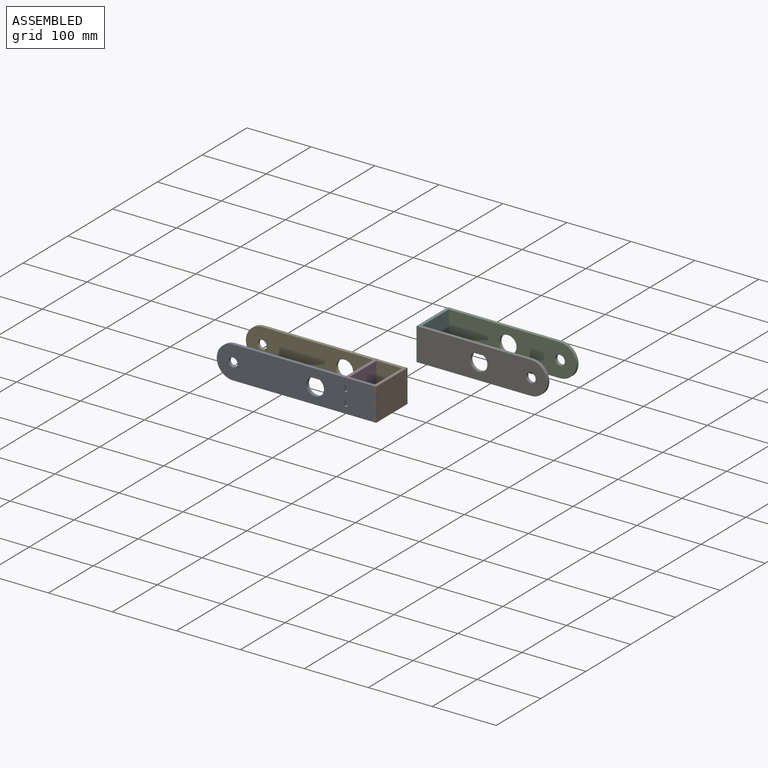
[diagram: assembled view]
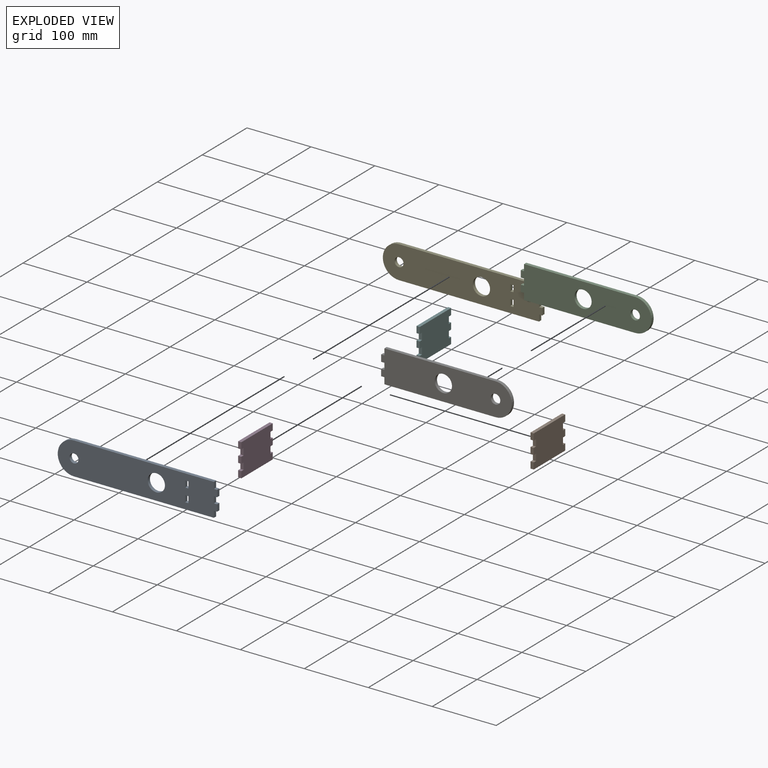
[diagram: exploded view]
GUIDED TOUR — MATED ASSEMBLY (Onshape document 6c9afa6b037c5e3ceae4af57, AutoMate assembly 6c9afa6b037c5e3ceae4af57_e607dff3a3841df9cf91f643_6e74c5bbe76d56f467ab0119_default)

This assembly has 7 components, labeled P0..P6 below (a component is one placed occurrence of a part; the same part can appear more than once), held together by 11 mates. A mate is a constraint between two components; its type names the relative motion it leaves free:
  FASTENED — locks the two components together rigidly (no relative motion),
  PLANAR — leaves sliding in the plane through the listed point (normal = the listed direction) and rotation about that normal free.
Axis/direction vectors are unit vectors and 'through' points are millimeter coordinates, both in the assembly's world frame.

MATES
  1. FASTENED "Fastened 2": P4 <-> P1, direction (0.000, 1.000, 0.000) through (-42.67, -80.15, -51.78) mm
  2. FASTENED "Fastened 3": P2 <-> P5, direction (0.000, 1.000, 0.000) through (-40.12, 6.35, 22.15) mm
  3. PLANAR "Planar 2": P5 <-> P6, direction (1.000, 0.000, 0.000) through (-35.04, -63.81, 32.25) mm
  4. PLANAR "Planar 5": P4 <-> P1, direction (0.000, 1.000, 0.000) through (-47.75, -80.15, -21.38) mm
  5. FASTENED "Fastened 5": P3 <-> P0, direction (0.000, -1.000, 0.000) through (-87.59, -150.31, -62.18) mm
  6. PLANAR "Planar 3": P2 <-> P5, direction (-1.000, 0.000, 0.000) through (-40.12, 1.27, -8.65) mm
  7. FASTENED "Fastened 1": P0 <-> P1, direction (0.000, -1.000, 0.000) through (-42.67, -150.31, -31.38) mm
  8. PLANAR "Planar 1": P2 <-> P5, direction (-1.000, 0.000, 0.000) through (-35.04, 6.35, 32.15) mm
  9. PLANAR "Planar 4": P0 <-> P1, direction (0.000, -1.000, 0.000) through (-47.75, -150.31, -21.38) mm
  10. FASTENED "Fastened 4": P6 <-> P5, direction (0.000, -1.000, 0.000) through (-40.12, -63.81, 22.15) mm
  11. PLANAR "Planar 6": P0 <-> P1, direction (0.000, -1.000, 0.000) through (-42.67, -150.31, -51.78) mm

ASSEMBLY ORDER
  1. P5 — the base component [order verified]
  2. P6 [order verified]
  3. P1 [order verified]
  4. P3 [order verified]
  5. P4 [order verified]
  6. P2 [order verified]
  7. P0 [order verified]
Order-tag legend:
  [order verified] — this step's position reverses a verified removal order: the component was checked to insert without passing through the ones already placed.

Of the 7 components, 7 carry the full construction recipe — the FeatureScript program that regenerates the part's solid from scratch; the rest are supplied as boundary geometry only.
Each toured component is shown spotlighted twice — in the assembled view, then in the exploded view, where a leader line traces a displaced component back to its assembled socket (saturated green if recipe-attached, orange if geometry-only; every other component desaturated gray) — followed by its recipe or geometry summary and the mates that hold it.
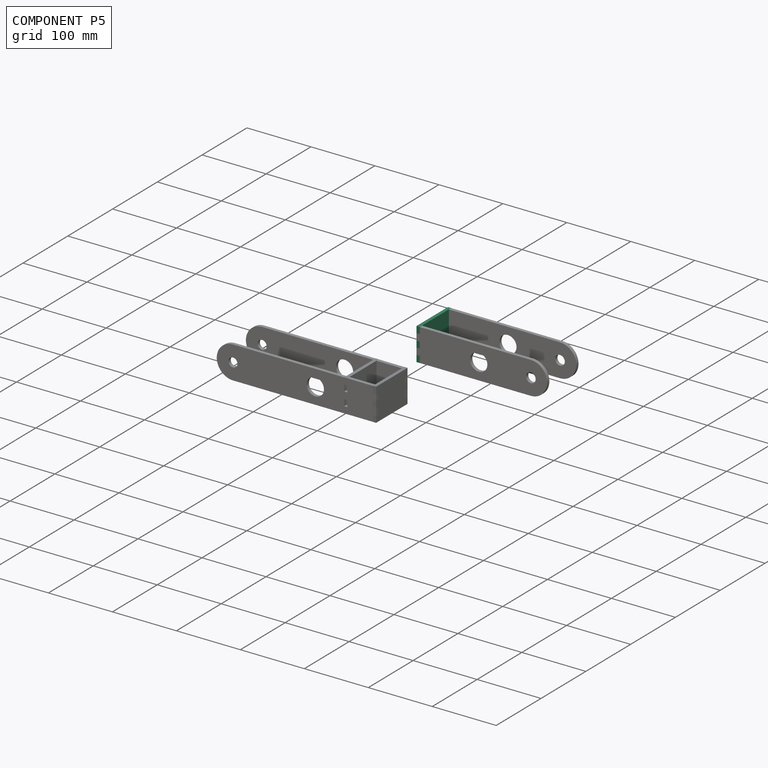
[diagram: component P5 — assembled]
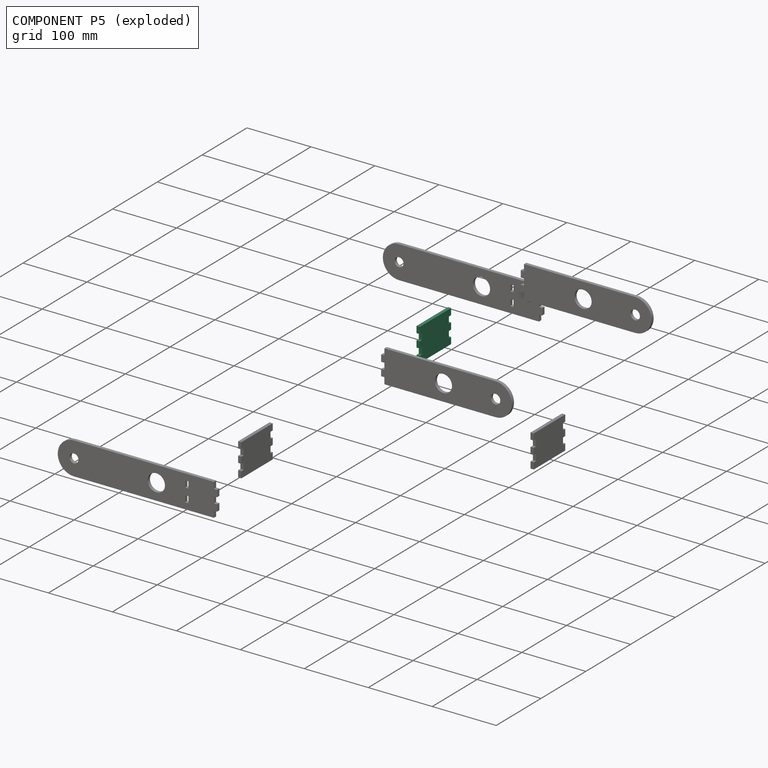
[diagram: component P5 — exploded]
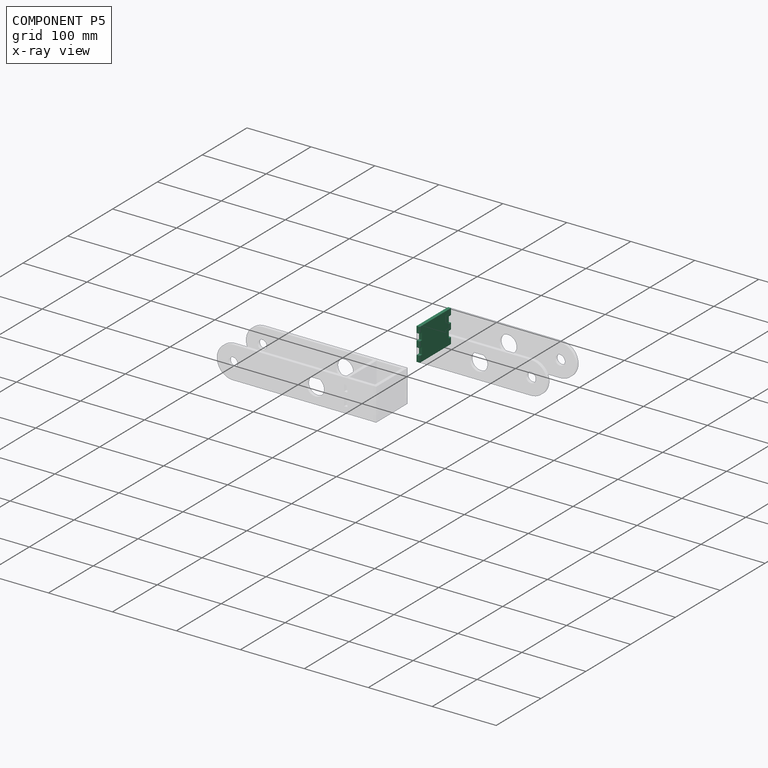
[diagram: component P5 — x-ray view]
COMPONENT P5 — same part as P1 (CADFS 00228455); its construction recipe is shown at P1.
Held by: FASTENED mate "Fastened 3" to P2; PLANAR mate "Planar 2" to P6; PLANAR mate "Planar 3" to P2; PLANAR mate "Planar 1" to P2; FASTENED mate "Fastened 4" to P6.
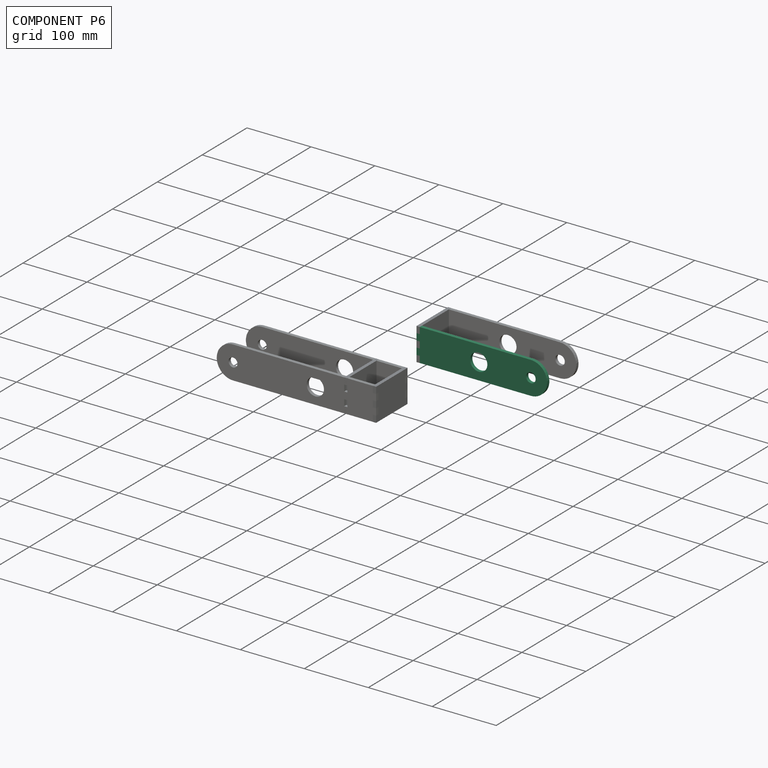
[diagram: component P6 — assembled]
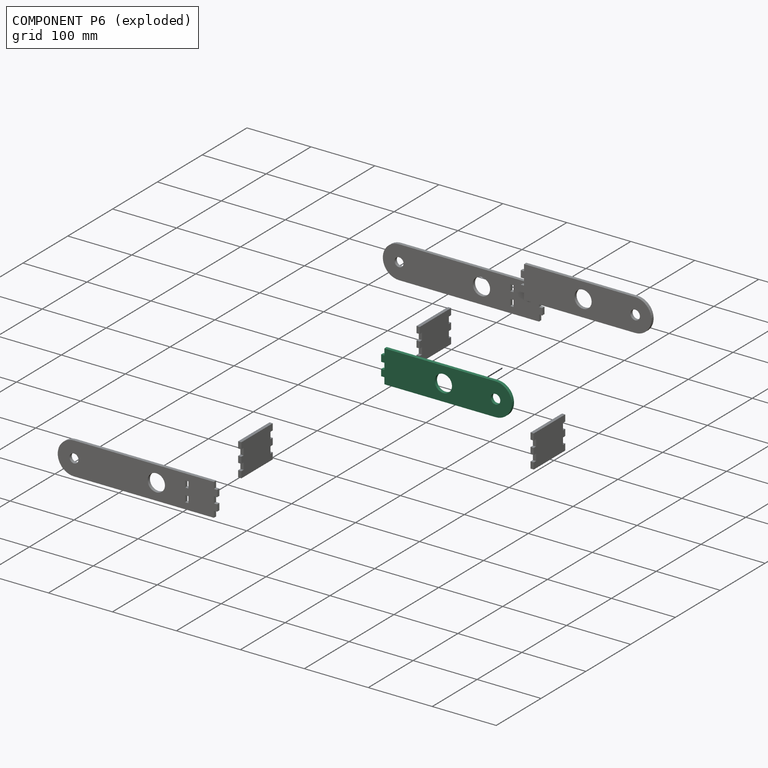
[diagram: component P6 — exploded]
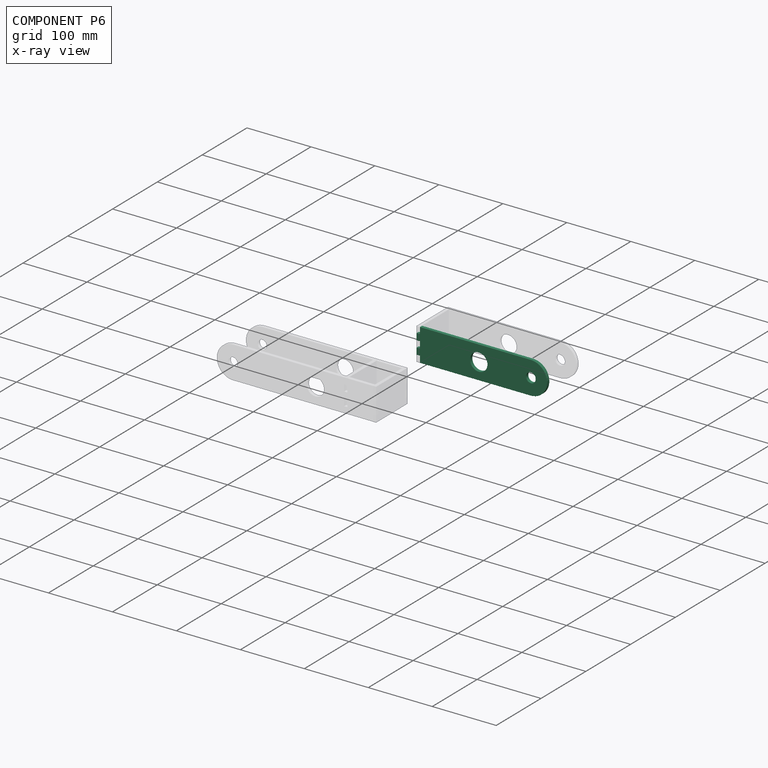
[diagram: component P6 — x-ray view]
COMPONENT P6 — same part as P2 (CADFS 00228457); its construction recipe is shown at P2.
Held by: PLANAR mate "Planar 2" to P5; FASTENED mate "Fastened 4" to P5.
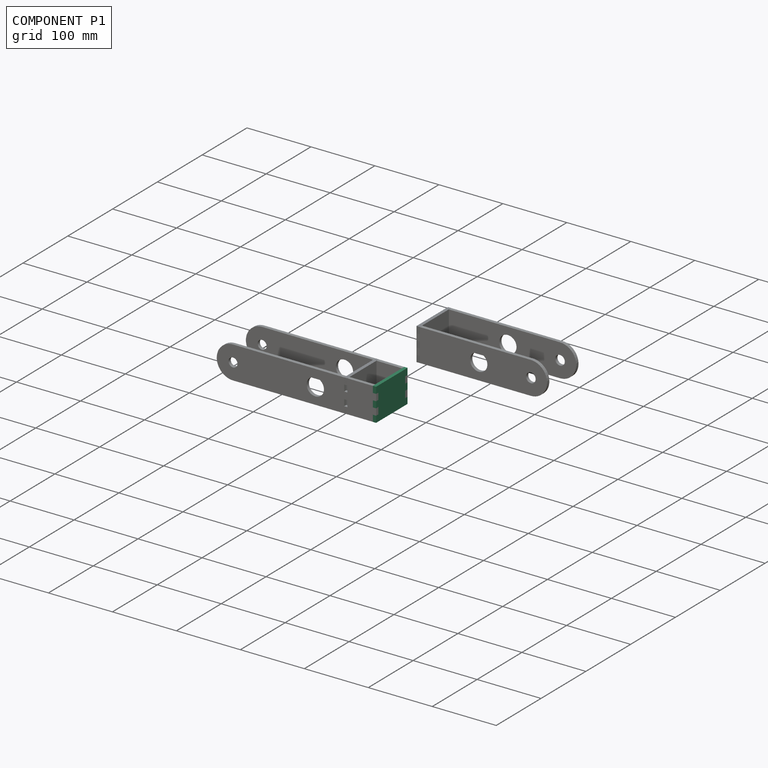
[diagram: component P1 — assembled]
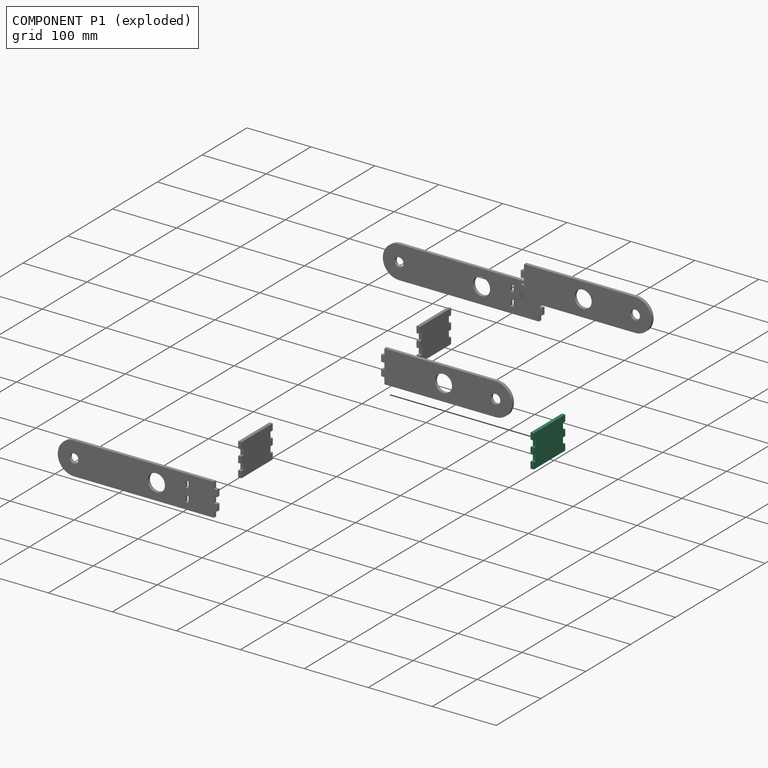
[diagram: component P1 — exploded]
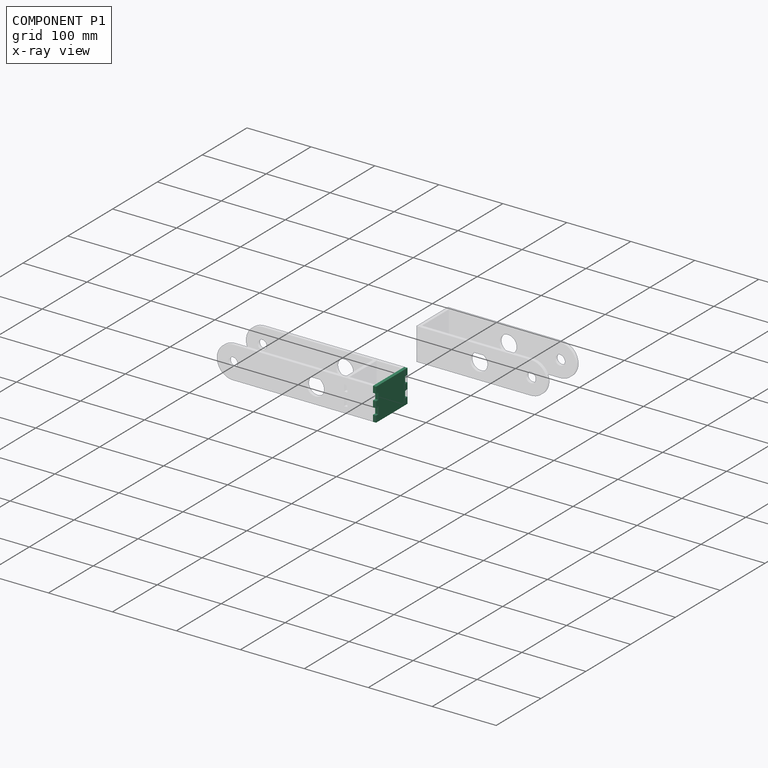
[diagram: component P1 — x-ray view]
COMPONENT P1 — recipe-attached (CADFS 00228455, mesh-verified: the recipe's output STEP matches this component's geometry to below the mesh-comparison resolution (tessellation chordal tolerance ~0.13 mm)).
Held by: FASTENED mate "Fastened 2" to P4; PLANAR mate "Planar 5" to P4; FASTENED mate "Fastened 1" to P0; PLANAR mate "Planar 4" to P0; PLANAR mate "Planar 6" to P0.
Construction recipe (FeatureScript — the CAD program that rebuilds this solid; sketch coordinates are in the units given by the * unit suffixes, e.g. mm):

FeatureScript 1511;
import(path : "onshape/std/geometry.fs", version : "1511.0");
import(path : "onshape/std/common.fs", version : "1511.0");
const mm = millimeter;
const VERTEX = EntityType.VERTEX;
const EDGE = EntityType.EDGE;
const FACE = EntityType.FACE;
const BODY = EntityType.BODY;
function v(x, y){return vector(x, y);}
function OD(order){return orderDisambiguation(order);}
function OSD(set){return originalSetDisambiguation(set);}
function TD(topology){return topologyDisambiguation(topology);}
function TDD(query){return trueDependencyDisambiguation(query);}
function sQuery(a, b, c) {return sketchEntityQuery(a, b, c);}

annotation { "Feature Type Name" : "Feature", "Feature Type Description" : "" }
export const myFeature = defineFeature(function(context is Context, id is Id, definition is map)
    precondition{}
    {
        {
            var Q0;
            Q0=qCreatedBy(makeId("Front.planeOp"),FACE);
            var sketch = newSketch(context, id + "F0", { "sketchPlane" : qUnion([Q0])});
            skLineSegment(sketch, "E0.bottom", {"start": v(0, 0) * mm, "end": v(70.16, 0) * mm});
            skLineSegment(sketch, "E0.top", {"start": v(0, -51) * mm, "end": v(70.16, -51) * mm});
            skLineSegment(sketch, "E0.left", {"start": v(0, 0) * mm, "end": v(0, -51) * mm});
            skLineSegment(sketch, "E0.right", {"start": v(70.16, 0) * mm, "end": v(70.16, -51) * mm});
            skLineSegment(sketch, "E1.bottom", {"start": v(0, -10.1) * mm, "end": v(5.08, -10.1) * mm});
            skLineSegment(sketch, "E1.top", {"start": v(0, -20.5) * mm, "end": v(5.08, -20.5) * mm});
            skLineSegment(sketch, "E1.left", {"start": v(0, -10.1) * mm, "end": v(0, -20.5) * mm});
            skLineSegment(sketch, "E1.right", {"start": v(5.08, -10.1) * mm, "end": v(5.08, -20.5) * mm});
            skLineSegment(sketch, "E2.bottom", {"start": v(0, -30.5) * mm, "end": v(5.08, -30.5) * mm});
            skLineSegment(sketch, "E2.top", {"start": v(0, -40.9) * mm, "end": v(5.08, -40.9) * mm});
            skLineSegment(sketch, "E2.left", {"start": v(0, -30.5) * mm, "end": v(0, -40.9) * mm});
            skLineSegment(sketch, "E2.right", {"start": v(5.08, -30.5) * mm, "end": v(5.08, -40.9) * mm});
            skLineSegment(sketch, "E3", {"start": v(35.08, 52.74) * mm, "end": v(35.08, -68.86) * mm, "construction": true});
            skLineSegment(sketch, "E4.MirrorCS", {"start": v(70.16, -10.1) * mm, "end": v(65.08, -10.1) * mm});
            skLineSegment(sketch, "E5.MirrorCS", {"start": v(65.08, -10.1) * mm, "end": v(65.08, -20.5) * mm});
            skLineSegment(sketch, "E6.MirrorCS", {"start": v(70.16, -20.5) * mm, "end": v(65.08, -20.5) * mm});
            skLineSegment(sketch, "E7.MirrorCS", {"start": v(70.16, -30.5) * mm, "end": v(65.08, -30.5) * mm});
            skLineSegment(sketch, "E8.MirrorCS", {"start": v(65.08, -30.5) * mm, "end": v(65.08, -40.9) * mm});
            skLineSegment(sketch, "E9.MirrorCS", {"start": v(70.16, -40.9) * mm, "end": v(65.08, -40.9) * mm});
            skSolve(sketch);
        }
        {
            var Q0;
            {var subQ5=sQuery(id+"F0.wireOp",EDGE,"E0.bottom");Q0=makeQuery(id+"F0.imprint","IMPRINT",FACE,{"disambiguationData":[TD([[makeQuery(id+"F0.imprint","IMPRINT",EDGE,{"derivedFrom":subQ5}),-1.0]])]});}
            extrude(context, id + "F1", {"entities" : qUnion([Q0]), "depth" : 5.08 * mm});
        }
    });
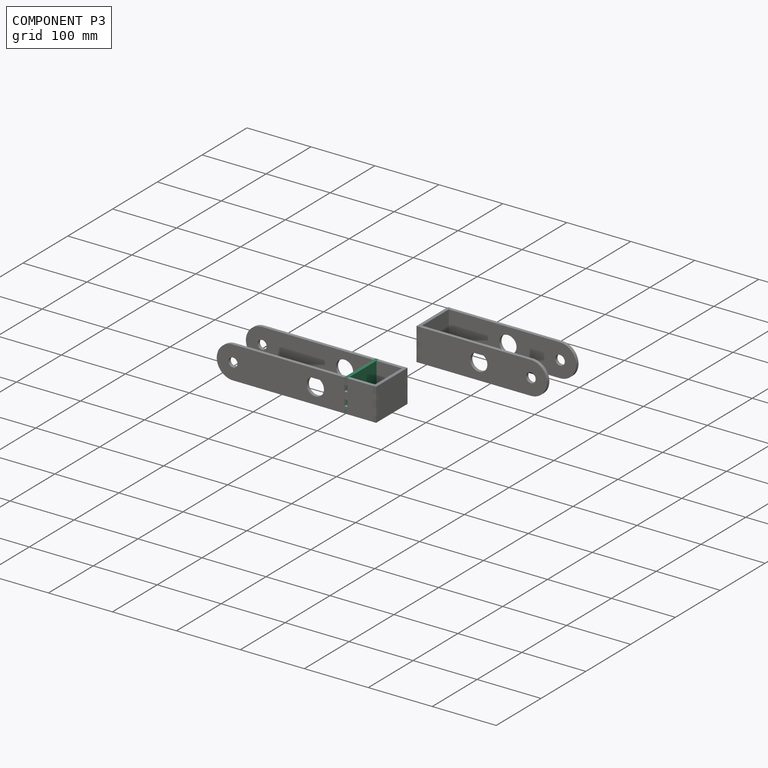
[diagram: component P3 — assembled]
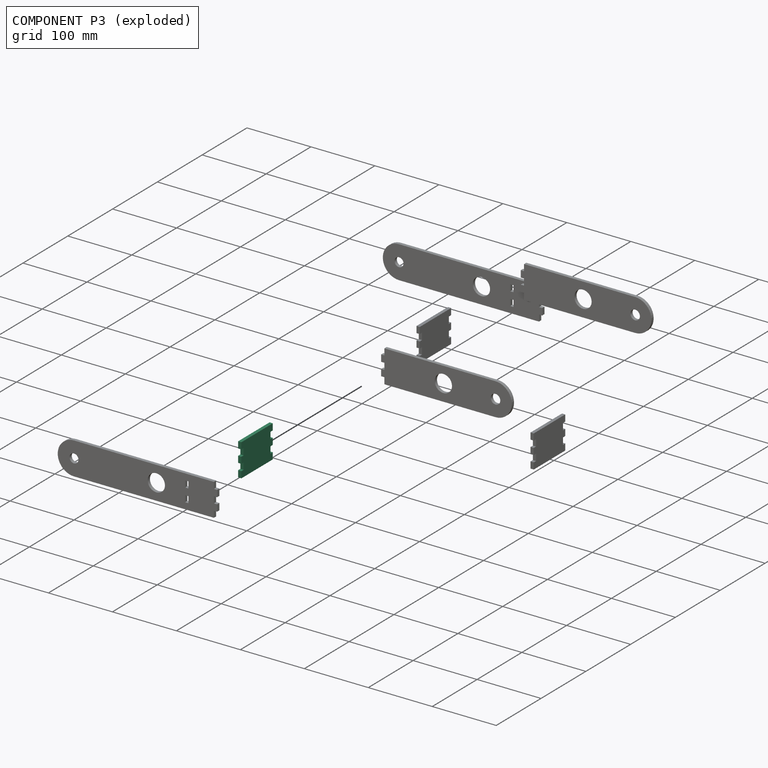
[diagram: component P3 — exploded]
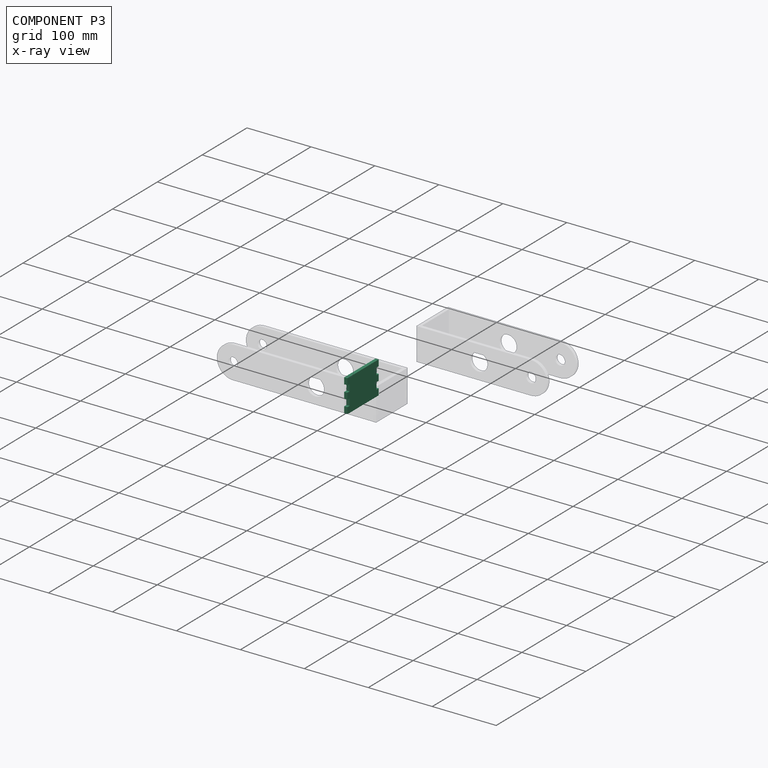
[diagram: component P3 — x-ray view]
COMPONENT P3 — same part as P1 (CADFS 00228455); its construction recipe is shown at P1.
Held by: FASTENED mate "Fastened 5" to P0.
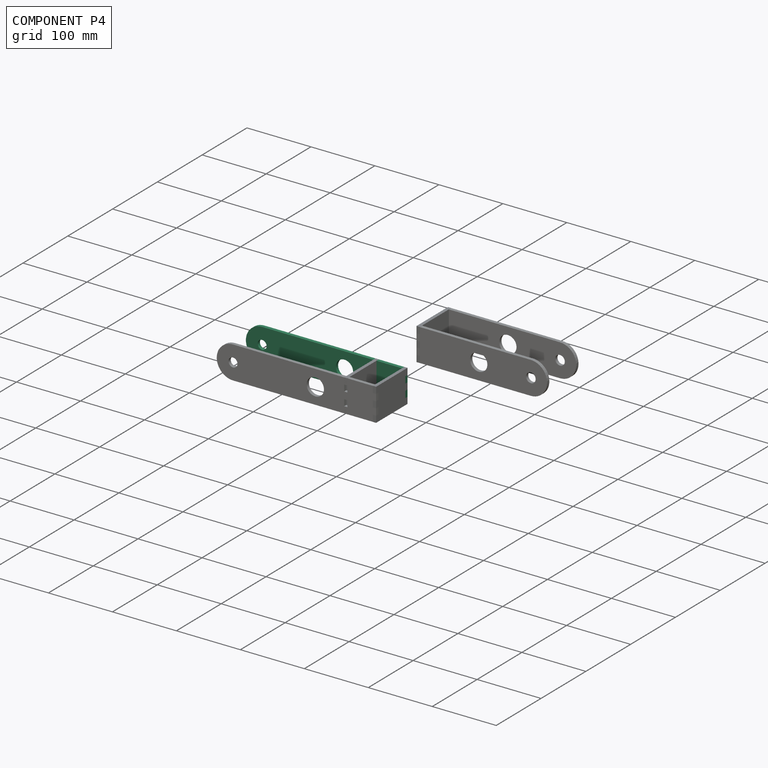
[diagram: component P4 — assembled]
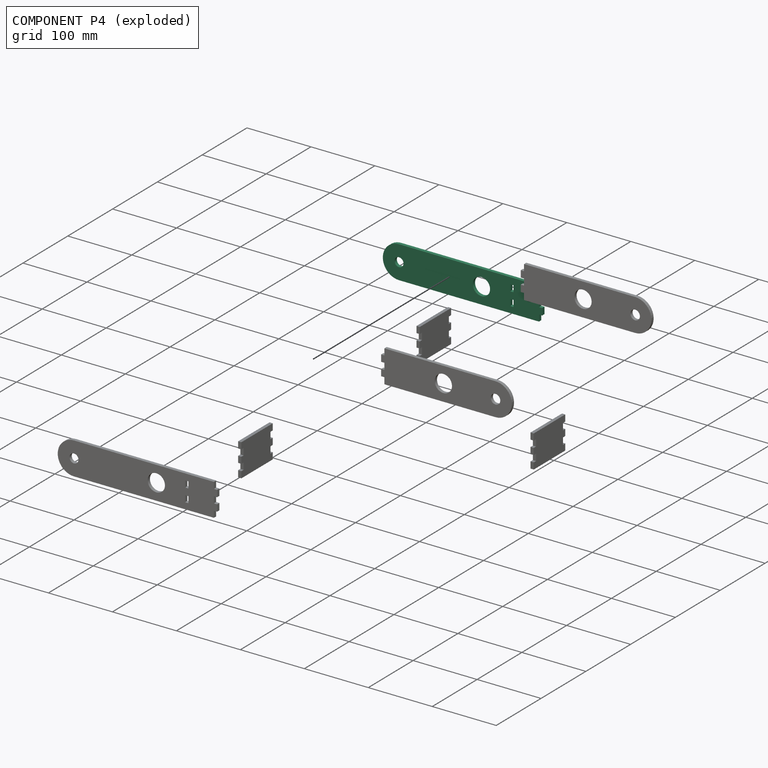
[diagram: component P4 — exploded]
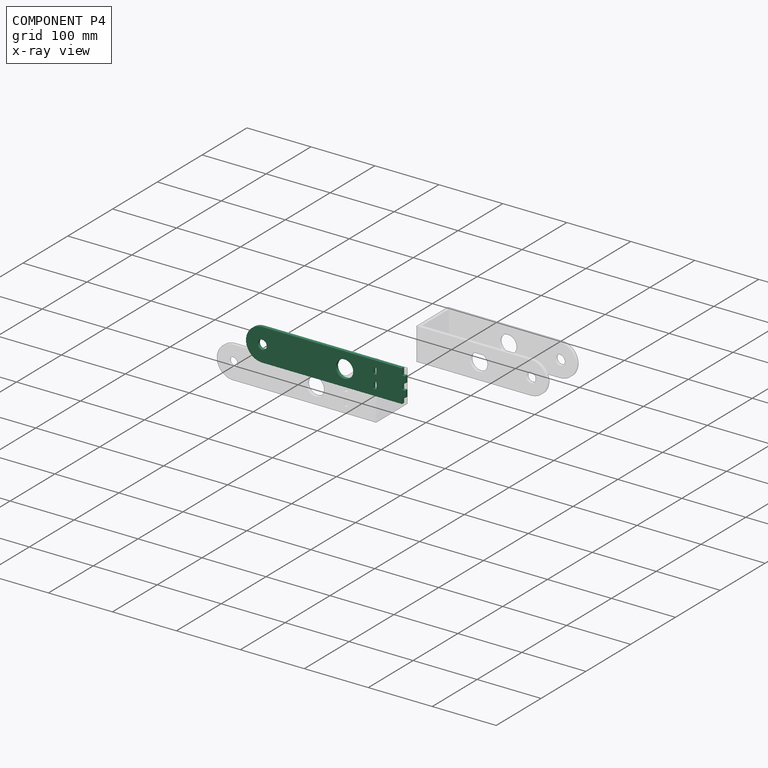
[diagram: component P4 — x-ray view]
COMPONENT P4 — same part as P0 (CADFS 00228453); its construction recipe is shown at P0.
Held by: FASTENED mate "Fastened 2" to P1; PLANAR mate "Planar 5" to P1.
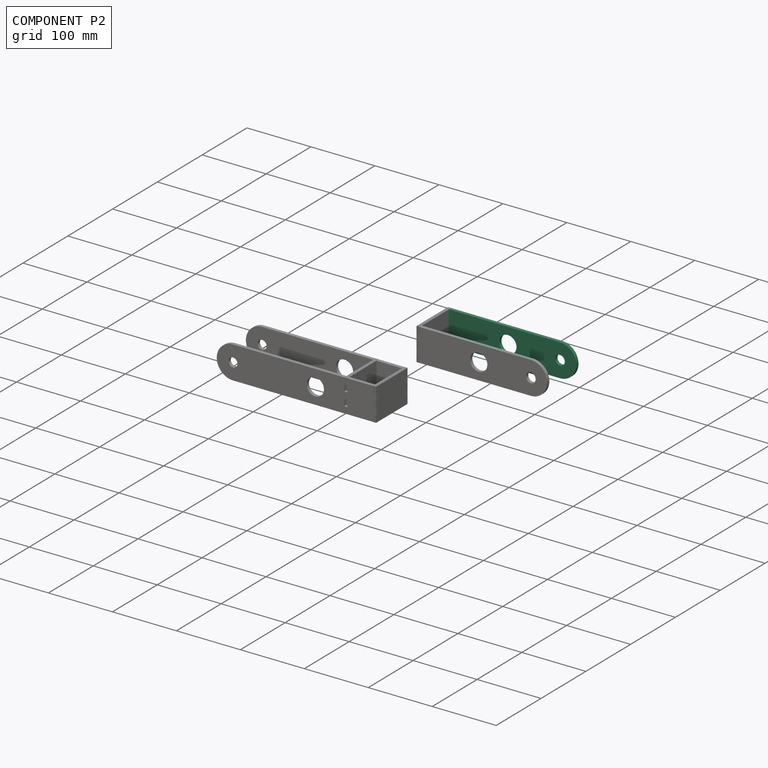
[diagram: component P2 — assembled]
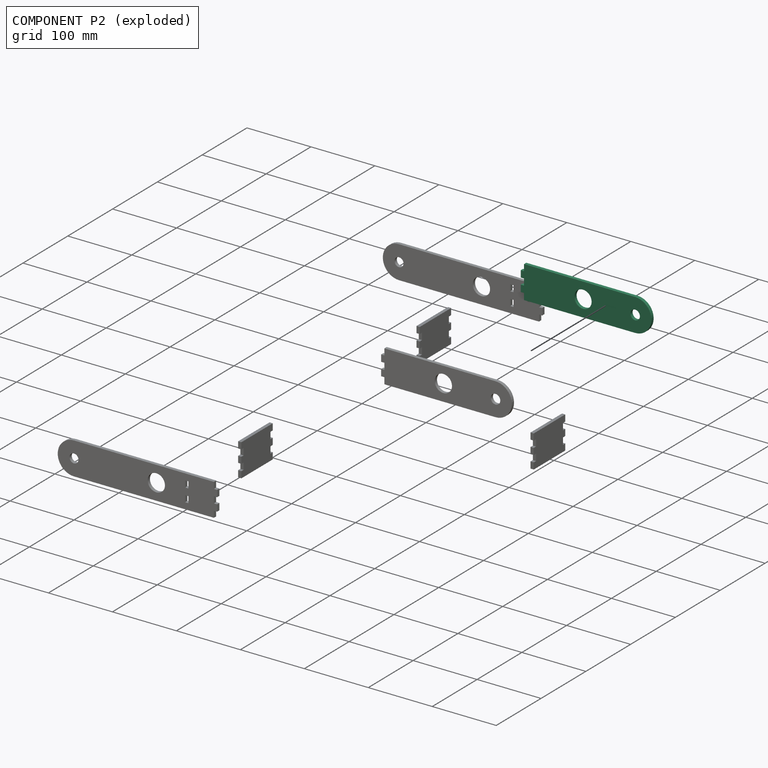
[diagram: component P2 — exploded]
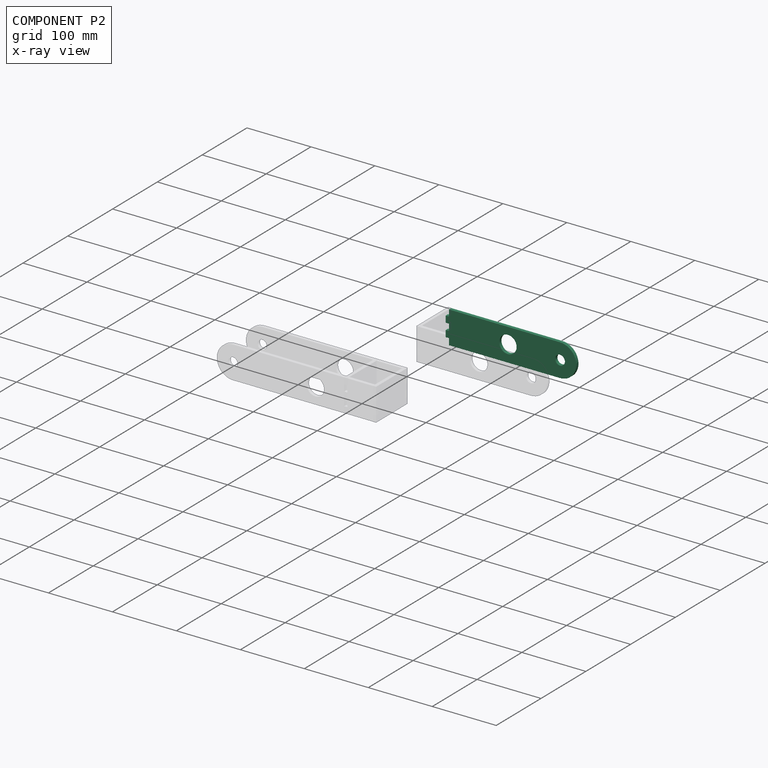
[diagram: component P2 — x-ray view]
COMPONENT P2 — recipe-attached (CADFS 00228457, mesh-verified: the recipe's output STEP matches this component's geometry to below the mesh-comparison resolution (tessellation chordal tolerance ~0.316 mm)).
Held by: FASTENED mate "Fastened 3" to P5; PLANAR mate "Planar 3" to P5; PLANAR mate "Planar 1" to P5.
Construction recipe (FeatureScript — the CAD program that rebuilds this solid; sketch coordinates are in the units given by the * unit suffixes, e.g. mm):

FeatureScript 1511;
import(path : "onshape/std/geometry.fs", version : "1511.0");
import(path : "onshape/std/common.fs", version : "1511.0");
const mm = millimeter;
const VERTEX = EntityType.VERTEX;
const EDGE = EntityType.EDGE;
const FACE = EntityType.FACE;
const BODY = EntityType.BODY;
function v(x, y){return vector(x, y);}
function OD(order){return orderDisambiguation(order);}
function OSD(set){return originalSetDisambiguation(set);}
function TD(topology){return topologyDisambiguation(topology);}
function TDD(query){return trueDependencyDisambiguation(query);}
function sQuery(a, b, c) {return sketchEntityQuery(a, b, c);}

annotation { "Feature Type Name" : "Feature", "Feature Type Description" : "" }
export const myFeature = defineFeature(function(context is Context, id is Id, definition is map)
    precondition{}
    {
        {
            var Q0;
            Q0=qCreatedBy(makeId("Front.planeOp"),FACE);
            var sketch = newSketch(context, id + "F0", { "sketchPlane" : qUnion([Q0])});
            skArc(sketch, "E0", {"start": v(178.75, 0) * mm, "mid": v(204.15, 25.4) * mm, "end": v(178.75, 50.8) * mm});
            skCircle(sketch, "E1", {"center": v(178.75, 25.4) * mm, "radius": 7.5 * mm});
            skCircle(sketch, "E2", {"center": v(97.26, 25.8) * mm, "radius": 13.5 * mm});
            skLineSegment(sketch, "E3", {"start": v(0, 50.8) * mm, "end": v(0, 0) * mm});
            skLineSegment(sketch, "E4", {"start": v(0, 50.8) * mm, "end": v(178.75, 50.8) * mm});
            skLineSegment(sketch, "E5", {"start": v(0, 0) * mm, "end": v(178.75, 0) * mm});
            skLineSegment(sketch, "E6.bottom", {"start": v(0, 40.8) * mm, "end": v(5.08, 40.8) * mm});
            skLineSegment(sketch, "E6.top", {"start": v(0, 50.8) * mm, "end": v(5.08, 50.8) * mm});
            skLineSegment(sketch, "E6.left", {"start": v(0, 40.8) * mm, "end": v(0, 50.8) * mm});
            skLineSegment(sketch, "E6.right", {"start": v(5.08, 40.8) * mm, "end": v(5.08, 50.8) * mm});
            skLineSegment(sketch, "E7.bottom", {"start": v(0, 30.4) * mm, "end": v(5.08, 30.4) * mm});
            skLineSegment(sketch, "E7.top", {"start": v(0, 20.4) * mm, "end": v(5.08, 20.4) * mm});
            skLineSegment(sketch, "E7.left", {"start": v(0, 30.4) * mm, "end": v(0, 20.4) * mm});
            skLineSegment(sketch, "E7.right", {"start": v(5.08, 30.4) * mm, "end": v(5.08, 20.4) * mm});
            skLineSegment(sketch, "E8.bottom", {"start": v(0, 0) * mm, "end": v(5.08, 0) * mm});
            skLineSegment(sketch, "E8.top", {"start": v(0, 10) * mm, "end": v(5.08, 10) * mm});
            skLineSegment(sketch, "E8.left", {"start": v(0, 0) * mm, "end": v(0, 10) * mm});
            skLineSegment(sketch, "E8.right", {"start": v(5.08, 0) * mm, "end": v(5.08, 10) * mm});
            skSolve(sketch);
        }
        {
            var Q0;
            Q0=makeQuery(id+"F0.imprint","IMPRINT",FACE,{"disambiguationData":[TD([[makeQuery(id+"F0.imprint","IMPRINT",EDGE,{"derivedFrom":sQuery(id+"F0.wireOp",EDGE,"E0")}),1.0]])]});
            extrude(context, id + "F1", {"entities" : qUnion([Q0]), "depth" : 5.08 * mm});
        }
    });
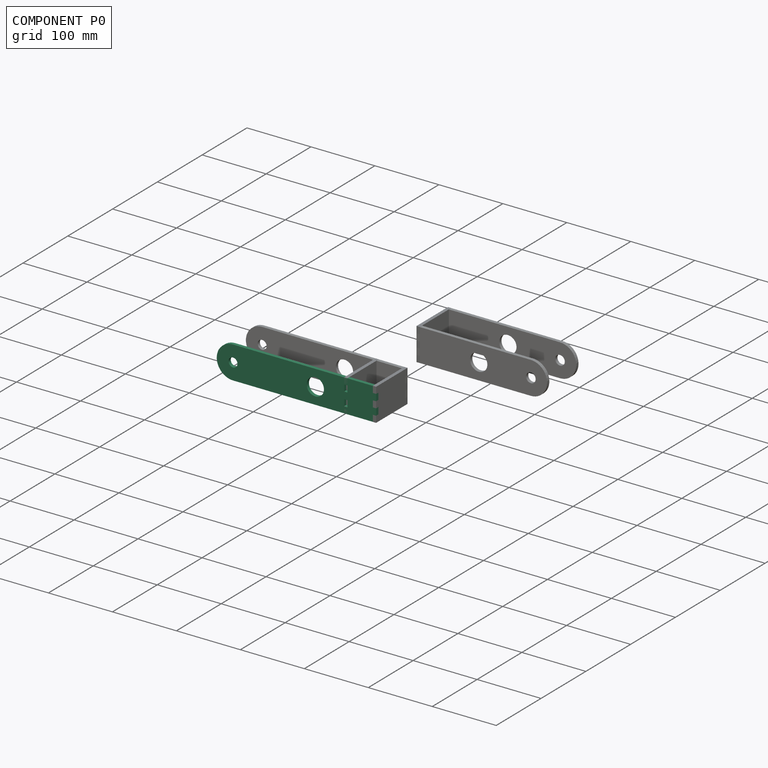
[diagram: component P0 — assembled]
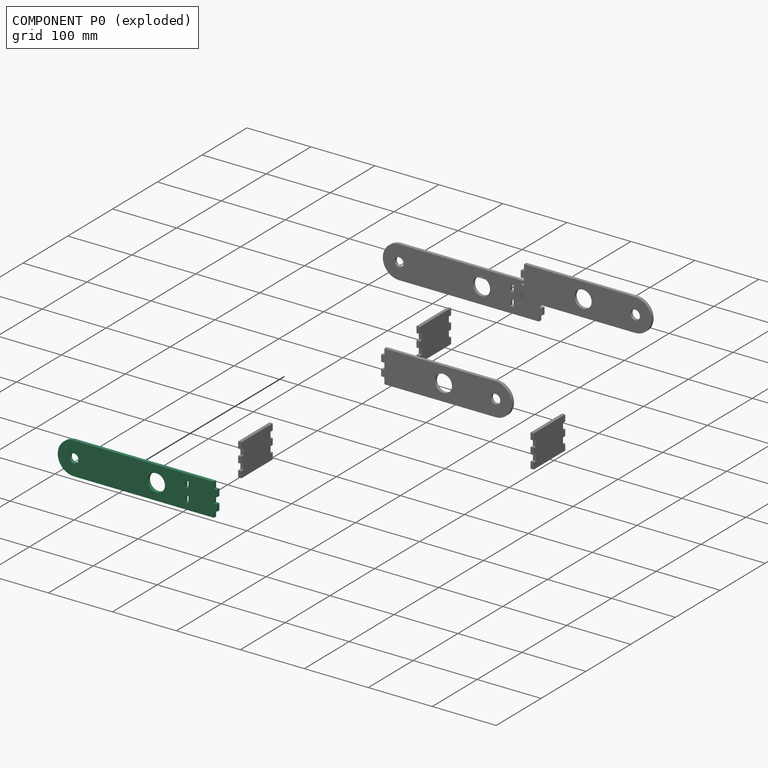
[diagram: component P0 — exploded]
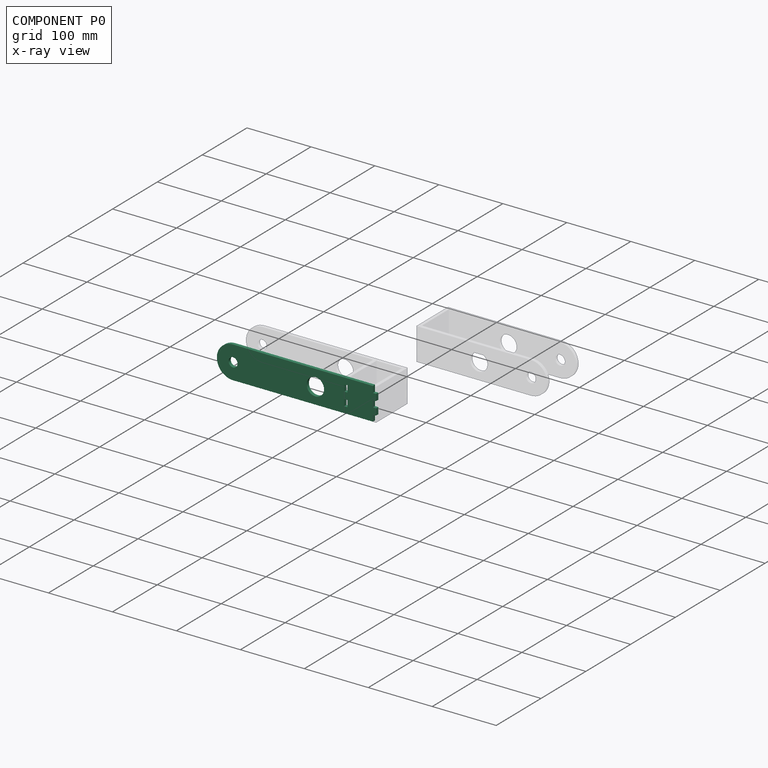
[diagram: component P0 — x-ray view]
COMPONENT P0 — recipe-attached (CADFS 00228453, mesh-verified: the recipe's output STEP matches this component's geometry to below the mesh-comparison resolution (tessellation chordal tolerance ~0.381 mm)).
Held by: FASTENED mate "Fastened 5" to P3; FASTENED mate "Fastened 1" to P1; PLANAR mate "Planar 4" to P1; PLANAR mate "Planar 6" to P1.
Construction recipe (FeatureScript — the CAD program that rebuilds this solid; sketch coordinates are in the units given by the * unit suffixes, e.g. mm):

FeatureScript 1511;
import(path : "onshape/std/geometry.fs", version : "1511.0");
import(path : "onshape/std/common.fs", version : "1511.0");
const mm = millimeter;
const VERTEX = EntityType.VERTEX;
const EDGE = EntityType.EDGE;
const FACE = EntityType.FACE;
const BODY = EntityType.BODY;
function v(x, y){return vector(x, y);}
function OD(order){return orderDisambiguation(order);}
function OSD(set){return originalSetDisambiguation(set);}
function TD(topology){return topologyDisambiguation(topology);}
function TDD(query){return trueDependencyDisambiguation(query);}
function sQuery(a, b, c) {return sketchEntityQuery(a, b, c);}

annotation { "Feature Type Name" : "Feature", "Feature Type Description" : "" }
export const myFeature = defineFeature(function(context is Context, id is Id, definition is map)
    precondition{}
    {
        {
            var Q0;
            Q0=qCreatedBy(makeId("Front.planeOp"),FACE);
            var sketch = newSketch(context, id + "F0", { "sketchPlane" : qUnion([Q0])});
            skArc(sketch, "E0", {"start": v(-128.71, 25.4) * mm, "mid": v(-154.11, 0) * mm, "end": v(-128.71, -25.4) * mm});
            skLineSegment(sketch, "E1", {"start": v(0, 25.4) * mm, "end": v(-128.71, 25.4) * mm});
            skLineSegment(sketch, "E2", {"start": v(-128.71, -25.4) * mm, "end": v(0, -25.4) * mm});
            skCircle(sketch, "E3", {"center": v(-128.71, 0) * mm, "radius": 7 * mm});
            skCircle(sketch, "E4", {"center": v(0, 0) * mm, "radius": 13.5 * mm});
            skLineSegment(sketch, "E5", {"start": v(0, 25.4) * mm, "end": v(89.96, 25.4) * mm});
            skLineSegment(sketch, "E6", {"start": v(95.04, 15.4) * mm, "end": v(95.04, 5) * mm});
            skLineSegment(sketch, "E7", {"start": v(89.96, -25.4) * mm, "end": v(0, -25.4) * mm});
            skLineSegment(sketch, "E8", {"start": v(45.04, 25.4) * mm, "end": v(45.04, -25.4) * mm});
            skLineSegment(sketch, "E9.bottom", {"start": v(45.04, 15.4) * mm, "end": v(50.12, 15.4) * mm});
            skLineSegment(sketch, "E9.top", {"start": v(45.04, 5.4) * mm, "end": v(50.12, 5.4) * mm});
            skLineSegment(sketch, "E9.left", {"start": v(45.04, 15.4) * mm, "end": v(45.04, 5.4) * mm});
            skLineSegment(sketch, "E9.right", {"start": v(50.12, 15.4) * mm, "end": v(50.12, 5.4) * mm});
            skLineSegment(sketch, "E10", {"start": v(45.04, -15.4) * mm, "end": v(50.12, -15.4) * mm});
            skLineSegment(sketch, "E11", {"start": v(50.12, -15.4) * mm, "end": v(50.12, -5.4) * mm});
            skLineSegment(sketch, "E12", {"start": v(50.12, -5.4) * mm, "end": v(45.04, -5.4) * mm});
            skLineSegment(sketch, "E13.top", {"start": v(95.04, 15.4) * mm, "end": v(89.96, 15.4) * mm});
            skLineSegment(sketch, "E13.right", {"start": v(89.96, 25.4) * mm, "end": v(89.96, 15.4) * mm});
            skLineSegment(sketch, "E14.bottom", {"start": v(95.04, 5) * mm, "end": v(89.96, 5) * mm});
            skLineSegment(sketch, "E14.top", {"start": v(95.04, -5) * mm, "end": v(89.96, -5) * mm});
            skLineSegment(sketch, "E14.right", {"start": v(89.96, 5) * mm, "end": v(89.96, -5) * mm});
            skLineSegment(sketch, "E15.top", {"start": v(95.04, -15.4) * mm, "end": v(89.96, -15.4) * mm});
            skLineSegment(sketch, "E15.right", {"start": v(89.96, -25.4) * mm, "end": v(89.96, -15.4) * mm});
            skLineSegment(sketch, "E16.trimOffspring", {"start": v(95.04, -5) * mm, "end": v(95.04, -15.4) * mm});
            skSolve(sketch);
        }
        {
            var Q0;
            Q0 = qSketchRegion(id + "F0", true);
            extrude(context, id + "F1", {"entities" : qUnion([Q0]), "depth" : 5.08 * mm});
        }
    });
PROVENANCE & LICENSES
Assembly (occurrences, transforms, mates, per-part STEP geometry): AutoMate dataset, Zenodo record 7776208, CC0.
Construction recipes: CADFS (HuggingFace VladPyatov/CADFS, CC-BY-4.0, layered over the ABC dataset), FeatureScript reconstruction programs keyed by ABC model id.
Join: ABC meta listings map ABC model id -> Onshape documentId; within a shared document, parts are matched by geometric signature (bounding-box dims + volume at 0.1% relative tolerance, exact B-rep face/solid counts).
Verification: 7 of this assembly's 7 components carry a recipe attachment, and every attachment is mesh-verified: the CADFS STEP and the AutoMate member STEP were compared as meshes in their shared local frame (symmetric sampled-point-to-mesh distance); worst across the 7 attachments: below the mesh-comparison resolution (tessellation chordal tolerance ~0.381 mm) on a 254 mm part.
Renders: orthographic iso camera (az 35 / el 25); the floor grid conveys scale (grid pitch printed in each image; no ruler). In the exploded view each component is displaced by its stored offset vector: the offsets alone carry the explosion direction (mate normal/axis signs are not orientation cues and do not encode it), and separation distances are assigned per mate-chain, not proportionally to assembly-order depth.
